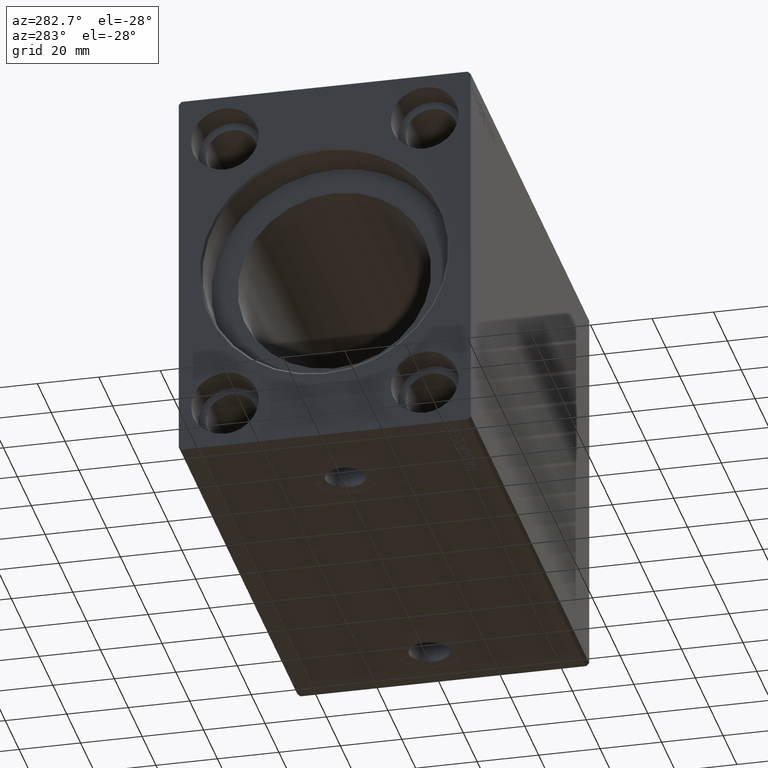
[diagram: clean part render]
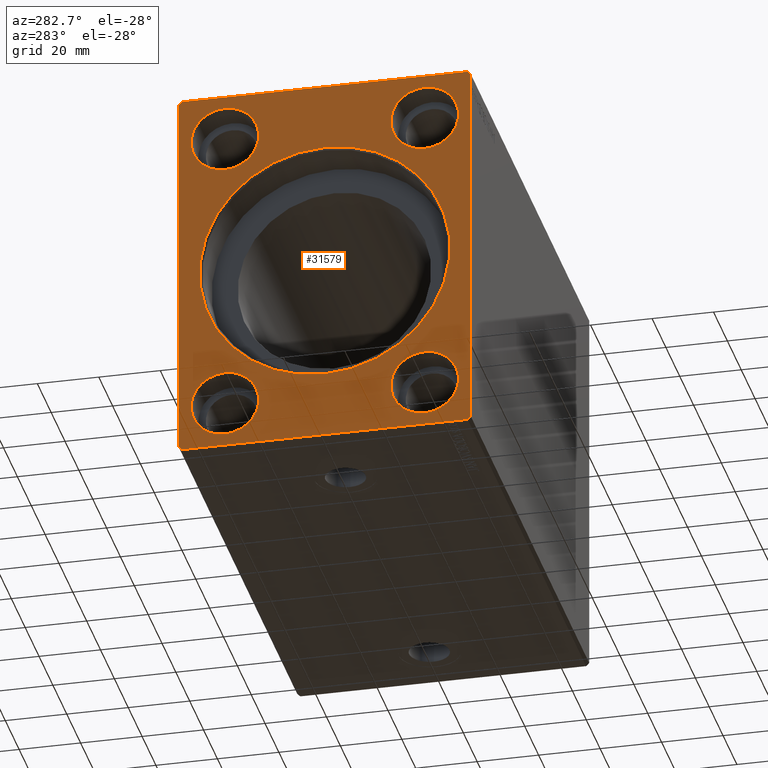
[diagram: same view with one face highlighted and labeled with its STEP entity id]
A machine part, auxiliary view. The second image highlights one B-rep face of the part: STEP entity #31579.
In plain terms, the highlighted planar face has unit normal (1, 0, 0).
Its self-contained STEP definition (entity closure, byte-faithful):
#267 = DIRECTION ( 'NONE',  ( 0.000000000000000000, 0.000000000000000000, 1.000000000000000000 ) ) ;
#1121 = DIRECTION ( 'NONE',  ( 0.000000000000000000, 0.7071067811865574537, 0.7071067811865376918 ) ) ;
#1377 = DIRECTION ( 'NONE',  ( 1.000000000000000000, -0.000000000000000000, -0.000000000000000000 ) ) ;
#1628 = DIRECTION ( 'NONE',  ( -1.000000000000000000, 0.000000000000000000, 0.000000000000000000 ) ) ;
#2009 = FACE_BOUND ( 'NONE', #2268, .T. ) ;
#2143 = DIRECTION ( 'NONE',  ( 0.000000000000000000, 0.000000000000000000, -1.000000000000000000 ) ) ;
#2268 = EDGE_LOOP ( 'NONE', ( #38261, #9526 ) ) ;
#2641 = CARTESIAN_POINT ( 'NONE',  ( 0.000000000000000000, 46.50000000000000000, 62.49999999999998579 ) ) ;
#2795 = EDGE_CURVE ( 'NONE', #35057, #17819, #28046, .T. ) ;
#4269 = EDGE_CURVE ( 'NONE', #21241, #40429, #15494, .T. ) ;
#4596 = FACE_BOUND ( 'NONE', #37874, .T. ) ;
#4860 = DIRECTION ( 'NONE',  ( 0.000000000000000000, 0.000000000000000000, -1.000000000000000000 ) ) ;
#5890 = CARTESIAN_POINT ( 'NONE',  ( 0.000000000000000000, 32.50000000000000000, -47.50000000000000000 ) ) ;
#6152 = CIRCLE ( 'NONE', #30174, 40.69999999999993179 ) ;
#6363 = VERTEX_POINT ( 'NONE', #8449 ) ;
#6931 = CARTESIAN_POINT ( 'NONE',  ( 0.000000000000000000, 47.50000000000000000, 61.49999999999998579 ) ) ;
#7033 = EDGE_CURVE ( 'NONE', #12885, #37396, #28280, .T. ) ;
#7213 = DIRECTION ( 'NONE',  ( 0.000000000000000000, 0.000000000000000000, -1.000000000000000000 ) ) ;
#7335 = CARTESIAN_POINT ( 'NONE',  ( 0.000000000000000000, 32.50000000000000000, 36.50000000000000711 ) ) ;
#7551 = CARTESIAN_POINT ( 'NONE',  ( 0.000000000000000000, 32.50000000000000000, -47.50000000000000000 ) ) ;
#7649 = ORIENTED_EDGE ( 'NONE', *, *, #10940, .F. ) ;
#7985 = AXIS2_PLACEMENT_3D ( 'NONE', #5890, #25449, #31672 ) ;
#8096 = CARTESIAN_POINT ( 'NONE',  ( 0.000000000000000000, 0.000000000000000000, 0.000000000000000000 ) ) ;
#8109 = VECTOR ( 'NONE', #1121, 999.9999999999998863 ) ;
#8298 = DIRECTION ( 'NONE',  ( 0.000000000000000000, 0.000000000000000000, 1.000000000000000000 ) ) ;
#8317 = EDGE_LOOP ( 'NONE', ( #41903, #23623 ) ) ;
#8449 = CARTESIAN_POINT ( 'NONE',  ( 0.000000000000000000, -47.50000000000001421, 61.49999999999997868 ) ) ;
#8467 = VERTEX_POINT ( 'NONE', #31774 ) ;
#9526 = ORIENTED_EDGE ( 'NONE', *, *, #24251, .T. ) ;
#9742 = VERTEX_POINT ( 'NONE', #36636 ) ;
#10114 = DIRECTION ( 'NONE',  ( 0.000000000000000000, 1.692413147294445970E-16, -1.000000000000000000 ) ) ;
#10125 = LINE ( 'NONE', #36317, #12953 ) ;
#10573 = DIRECTION ( 'NONE',  ( -1.000000000000000000, 0.000000000000000000, 0.000000000000000000 ) ) ;
#10606 = ORIENTED_EDGE ( 'NONE', *, *, #36851, .F. ) ;
#10940 = EDGE_CURVE ( 'NONE', #21452, #41253, #38524, .T. ) ;
#11050 = FACE_BOUND ( 'NONE', #8317, .T. ) ;
#11648 = AXIS2_PLACEMENT_3D ( 'NONE', #21366, #27797, #24155 ) ;
#12551 = DIRECTION ( 'NONE',  ( 1.000000000000000000, -0.000000000000000000, -0.000000000000000000 ) ) ;
#12708 = AXIS2_PLACEMENT_3D ( 'NONE', #38214, #31581, #2143 ) ;
#12885 = VERTEX_POINT ( 'NONE', #26001 ) ;
#12953 = VECTOR ( 'NONE', #39949, 1000.000000000000114 ) ;
#12986 = ORIENTED_EDGE ( 'NONE', *, *, #32805, .F. ) ;
#13317 = DIRECTION ( 'NONE',  ( 0.000000000000000000, 0.000000000000000000, -1.000000000000000000 ) ) ;
#13589 = DIRECTION ( 'NONE',  ( 0.000000000000000000, -0.7071067811865474617, 0.7071067811865474617 ) ) ;
#13867 = EDGE_CURVE ( 'NONE', #37396, #12885, #35939, .T. ) ;
#13987 = VERTEX_POINT ( 'NONE', #16452 ) ;
#14273 = FACE_BOUND ( 'NONE', #18566, .T. ) ;
#14790 = AXIS2_PLACEMENT_3D ( 'NONE', #7551, #10573, #267 ) ;
#14946 = ORIENTED_EDGE ( 'NONE', *, *, #24346, .F. ) ;
#15122 = PLANE ( 'NONE',  #11648 ) ;
#15206 = CARTESIAN_POINT ( 'NONE',  ( 0.000000000000000000, 4.984312472529719425E-15, -40.69999999999993179 ) ) ;
#15282 = DIRECTION ( 'NONE',  ( 0.000000000000000000, -1.000000000000000000, -7.461176240760460157E-17 ) ) ;
#15468 = CIRCLE ( 'NONE', #14790, 10.99999999999999645 ) ;
#15494 = LINE ( 'NONE', #18719, #35764 ) ;
#15778 = CARTESIAN_POINT ( 'NONE',  ( 0.000000000000000000, 47.50000000000001421, -61.50000000000001421 ) ) ;
#16094 = EDGE_CURVE ( 'NONE', #13987, #8467, #25745, .T. ) ;
#16356 = VERTEX_POINT ( 'NONE', #15206 ) ;
#16386 = VERTEX_POINT ( 'NONE', #39014 ) ;
#16452 = CARTESIAN_POINT ( 'NONE',  ( 0.000000000000000000, -32.50000000000000000, -36.50000000000000711 ) ) ;
#16914 = VERTEX_POINT ( 'NONE', #7335 ) ;
#16937 = VERTEX_POINT ( 'NONE', #32907 ) ;
#17198 = LINE ( 'NONE', #39936, #29495 ) ;
#17438 = AXIS2_PLACEMENT_3D ( 'NONE', #40712, #1628, #8298 ) ;
#17819 = VERTEX_POINT ( 'NONE', #33129 ) ;
#18471 = DIRECTION ( 'NONE',  ( 0.000000000000000000, 1.000000000000000000, 1.492235248152092278E-16 ) ) ;
#18555 = ORIENTED_EDGE ( 'NONE', *, *, #18633, .F. ) ;
#18562 = CARTESIAN_POINT ( 'NONE',  ( 0.000000000000000000, 0.000000000000000000, 40.69999999999993179 ) ) ;
#18566 = EDGE_LOOP ( 'NONE', ( #35440, #14946 ) ) ;
#18633 = EDGE_CURVE ( 'NONE', #41253, #21241, #36351, .T. ) ;
#18719 = CARTESIAN_POINT ( 'NONE',  ( 0.000000000000000000, 46.50000000000000000, 62.49999999999998579 ) ) ;
#18844 = AXIS2_PLACEMENT_3D ( 'NONE', #26860, #30079, #13317 ) ;
#18895 = EDGE_CURVE ( 'NONE', #16386, #16914, #33912, .T. ) ;
#19034 = DIRECTION ( 'NONE',  ( 0.000000000000000000, 0.7071067811865451302, -0.7071067811865500152 ) ) ;
#19302 = EDGE_CURVE ( 'NONE', #16914, #16386, #21571, .T. ) ;
#19825 = ORIENTED_EDGE ( 'NONE', *, *, #22571, .T. ) ;
#20329 = CIRCLE ( 'NONE', #42252, 40.69999999999993179 ) ;
#21241 = VERTEX_POINT ( 'NONE', #2641 ) ;
#21270 = EDGE_CURVE ( 'NONE', #26726, #16937, #15468, .T. ) ;
#21366 = CARTESIAN_POINT ( 'NONE',  ( 0.000000000000000000, 0.000000000000000000, 0.000000000000000000 ) ) ;
#21452 = VERTEX_POINT ( 'NONE', #40819 ) ;
#21571 = CIRCLE ( 'NONE', #29818, 10.99999999999999645 ) ;
#22294 = CARTESIAN_POINT ( 'NONE',  ( 0.000000000000000000, 47.50000000000000000, 61.49999999999998579 ) ) ;
#22422 = EDGE_LOOP ( 'NONE', ( #18555, #7649, #12986, #10606, #35856, #25466, #23222, #31003 ) ) ;
#22430 = DIRECTION ( 'NONE',  ( 0.000000000000000000, -1.128275431529630729E-16, 1.000000000000000000 ) ) ;
#22571 = EDGE_CURVE ( 'NONE', #31734, #16356, #20329, .T. ) ;
#23071 = CIRCLE ( 'NONE', #38161, 10.99999999999999645 ) ;
#23222 = ORIENTED_EDGE ( 'NONE', *, *, #33630, .F. ) ;
#23623 = ORIENTED_EDGE ( 'NONE', *, *, #19302, .T. ) ;
#23825 = CARTESIAN_POINT ( 'NONE',  ( 0.000000000000000000, -32.50000000000000000, 47.50000000000000000 ) ) ;
#24155 = DIRECTION ( 'NONE',  ( 0.000000000000000000, 0.000000000000000000, -1.000000000000000000 ) ) ;
#24251 = EDGE_CURVE ( 'NONE', #8467, #13987, #23071, .T. ) ;
#24324 = VECTOR ( 'NONE', #13589, 1000.000000000000114 ) ;
#24346 = EDGE_CURVE ( 'NONE', #16937, #26726, #33376, .T. ) ;
#25449 = DIRECTION ( 'NONE',  ( -1.000000000000000000, 0.000000000000000000, 0.000000000000000000 ) ) ;
#25466 = ORIENTED_EDGE ( 'NONE', *, *, #31025, .F. ) ;
#25745 = CIRCLE ( 'NONE', #12708, 10.99999999999999645 ) ;
#26001 = CARTESIAN_POINT ( 'NONE',  ( 0.000000000000000000, -32.50000000000000000, 36.50000000000000711 ) ) ;
#26726 = VERTEX_POINT ( 'NONE', #33730 ) ;
#26860 = CARTESIAN_POINT ( 'NONE',  ( 0.000000000000000000, 32.50000000000000000, 47.50000000000000000 ) ) ;
#27797 = DIRECTION ( 'NONE',  ( 1.000000000000000000, 0.000000000000000000, 0.000000000000000000 ) ) ;
#28046 = LINE ( 'NONE', #41994, #35701 ) ;
#28280 = CIRCLE ( 'NONE', #28995, 10.99999999999999645 ) ;
#28873 = DIRECTION ( 'NONE',  ( 0.000000000000000000, 0.000000000000000000, -1.000000000000000000 ) ) ;
#28929 = ORIENTED_EDGE ( 'NONE', *, *, #7033, .F. ) ;
#28995 = AXIS2_PLACEMENT_3D ( 'NONE', #23825, #33484, #33906 ) ;
#29495 = VECTOR ( 'NONE', #10114, 1000.000000000000000 ) ;
#29818 = AXIS2_PLACEMENT_3D ( 'NONE', #41529, #1377, #34243 ) ;
#30079 = DIRECTION ( 'NONE',  ( 1.000000000000000000, -0.000000000000000000, -0.000000000000000000 ) ) ;
#30174 = AXIS2_PLACEMENT_3D ( 'NONE', #42014, #35572, #7213 ) ;
#30559 = CARTESIAN_POINT ( 'NONE',  ( 0.000000000000000000, 46.50000000000000000, -62.50000000000000000 ) ) ;
#31003 = ORIENTED_EDGE ( 'NONE', *, *, #4269, .F. ) ;
#31025 = EDGE_CURVE ( 'NONE', #6363, #35057, #17198, .T. ) ;
#31027 = FACE_BOUND ( 'NONE', #35140, .T. ) ;
#31108 = VECTOR ( 'NONE', #22430, 1000.000000000000000 ) ;
#31311 = EDGE_CURVE ( 'NONE', #16356, #31734, #6152, .T. ) ;
#31579 = ADVANCED_FACE ( 'NONE', ( #31027, #14273, #4596, #40455, #2009, #11050 ), #15122, .F. ) ;
#31581 = DIRECTION ( 'NONE',  ( 1.000000000000000000, -0.000000000000000000, -0.000000000000000000 ) ) ;
#31672 = DIRECTION ( 'NONE',  ( 0.000000000000000000, 0.000000000000000000, 1.000000000000000000 ) ) ;
#31734 = VERTEX_POINT ( 'NONE', #18562 ) ;
#31774 = CARTESIAN_POINT ( 'NONE',  ( 0.000000000000000000, -32.50000000000000000, -58.50000000000000000 ) ) ;
#32309 = CARTESIAN_POINT ( 'NONE',  ( 0.000000000000000000, -32.50000000000000000, -47.50000000000000000 ) ) ;
#32805 = EDGE_CURVE ( 'NONE', #9742, #21452, #33775, .T. ) ;
#32907 = CARTESIAN_POINT ( 'NONE',  ( 0.000000000000000000, 32.50000000000000000, -58.50000000000000000 ) ) ;
#33129 = CARTESIAN_POINT ( 'NONE',  ( 0.000000000000000000, -46.50000000000000000, -62.50000000000001421 ) ) ;
#33212 = CARTESIAN_POINT ( 'NONE',  ( 0.000000000000000000, -47.49999999999999289, -61.50000000000001421 ) ) ;
#33376 = CIRCLE ( 'NONE', #7985, 10.99999999999999645 ) ;
#33484 = DIRECTION ( 'NONE',  ( -1.000000000000000000, 0.000000000000000000, 0.000000000000000000 ) ) ;
#33630 = EDGE_CURVE ( 'NONE', #40429, #6363, #10125, .T. ) ;
#33730 = CARTESIAN_POINT ( 'NONE',  ( 0.000000000000000000, 32.50000000000000000, -36.50000000000000711 ) ) ;
#33775 = LINE ( 'NONE', #30559, #8109 ) ;
#33906 = DIRECTION ( 'NONE',  ( 0.000000000000000000, 0.000000000000000000, 1.000000000000000000 ) ) ;
#33912 = CIRCLE ( 'NONE', #18844, 10.99999999999999645 ) ;
#34243 = DIRECTION ( 'NONE',  ( 0.000000000000000000, 0.000000000000000000, -1.000000000000000000 ) ) ;
#34294 = DIRECTION ( 'NONE',  ( 1.000000000000000000, 0.000000000000000000, 0.000000000000000000 ) ) ;
#34994 = CARTESIAN_POINT ( 'NONE',  ( 0.000000000000000000, -46.50000000000000000, -62.50000000000001421 ) ) ;
#35057 = VERTEX_POINT ( 'NONE', #33212 ) ;
#35140 = EDGE_LOOP ( 'NONE', ( #35804, #28929 ) ) ;
#35440 = ORIENTED_EDGE ( 'NONE', *, *, #21270, .F. ) ;
#35572 = DIRECTION ( 'NONE',  ( 1.000000000000000000, 0.000000000000000000, 0.000000000000000000 ) ) ;
#35701 = VECTOR ( 'NONE', #19034, 1000.000000000000114 ) ;
#35764 = VECTOR ( 'NONE', #15282, 1000.000000000000000 ) ;
#35804 = ORIENTED_EDGE ( 'NONE', *, *, #13867, .F. ) ;
#35856 = ORIENTED_EDGE ( 'NONE', *, *, #2795, .F. ) ;
#35939 = CIRCLE ( 'NONE', #17438, 10.99999999999999645 ) ;
#36158 = CARTESIAN_POINT ( 'NONE',  ( 0.000000000000000000, -32.50000000000000000, 58.50000000000000000 ) ) ;
#36317 = CARTESIAN_POINT ( 'NONE',  ( 0.000000000000000000, -46.50000000000001421, 62.49999999999997868 ) ) ;
#36351 = LINE ( 'NONE', #6931, #24324 ) ;
#36636 = CARTESIAN_POINT ( 'NONE',  ( 0.000000000000000000, 46.50000000000000000, -62.50000000000000000 ) ) ;
#36851 = EDGE_CURVE ( 'NONE', #17819, #9742, #41646, .T. ) ;
#37396 = VERTEX_POINT ( 'NONE', #36158 ) ;
#37874 = EDGE_LOOP ( 'NONE', ( #19825, #38400 ) ) ;
#38161 = AXIS2_PLACEMENT_3D ( 'NONE', #32309, #12551, #28873 ) ;
#38214 = CARTESIAN_POINT ( 'NONE',  ( 0.000000000000000000, -32.50000000000000000, -47.50000000000000000 ) ) ;
#38261 = ORIENTED_EDGE ( 'NONE', *, *, #16094, .T. ) ;
#38400 = ORIENTED_EDGE ( 'NONE', *, *, #31311, .T. ) ;
#38524 = LINE ( 'NONE', #15778, #31108 ) ;
#39014 = CARTESIAN_POINT ( 'NONE',  ( 0.000000000000000000, 32.50000000000000000, 58.50000000000000000 ) ) ;
#39735 = VECTOR ( 'NONE', #18471, 1000.000000000000000 ) ;
#39936 = CARTESIAN_POINT ( 'NONE',  ( 0.000000000000000000, -47.50000000000001421, 61.49999999999997868 ) ) ;
#39949 = DIRECTION ( 'NONE',  ( 0.000000000000000000, -0.7071067811865474617, -0.7071067811865474617 ) ) ;
#40429 = VERTEX_POINT ( 'NONE', #41377 ) ;
#40455 = FACE_OUTER_BOUND ( 'NONE', #22422, .T. ) ;
#40712 = CARTESIAN_POINT ( 'NONE',  ( 0.000000000000000000, -32.50000000000000000, 47.50000000000000000 ) ) ;
#40819 = CARTESIAN_POINT ( 'NONE',  ( 0.000000000000000000, 47.50000000000001421, -61.50000000000001421 ) ) ;
#41253 = VERTEX_POINT ( 'NONE', #22294 ) ;
#41377 = CARTESIAN_POINT ( 'NONE',  ( 0.000000000000000000, -46.50000000000001421, 62.49999999999997868 ) ) ;
#41529 = CARTESIAN_POINT ( 'NONE',  ( 0.000000000000000000, 32.50000000000000000, 47.50000000000000000 ) ) ;
#41646 = LINE ( 'NONE', #34994, #39735 ) ;
#41903 = ORIENTED_EDGE ( 'NONE', *, *, #18895, .T. ) ;
#41994 = CARTESIAN_POINT ( 'NONE',  ( 0.000000000000000000, -47.49999999999999289, -61.50000000000001421 ) ) ;
#42014 = CARTESIAN_POINT ( 'NONE',  ( 0.000000000000000000, 0.000000000000000000, 0.000000000000000000 ) ) ;
#42252 = AXIS2_PLACEMENT_3D ( 'NONE', #8096, #34294, #4860 ) ;